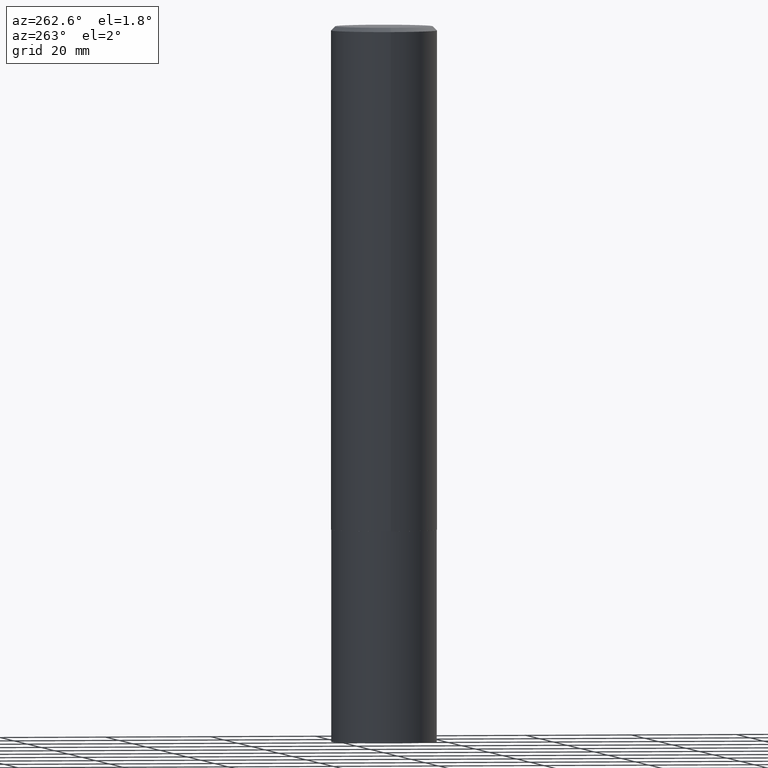
[diagram: clean part render]
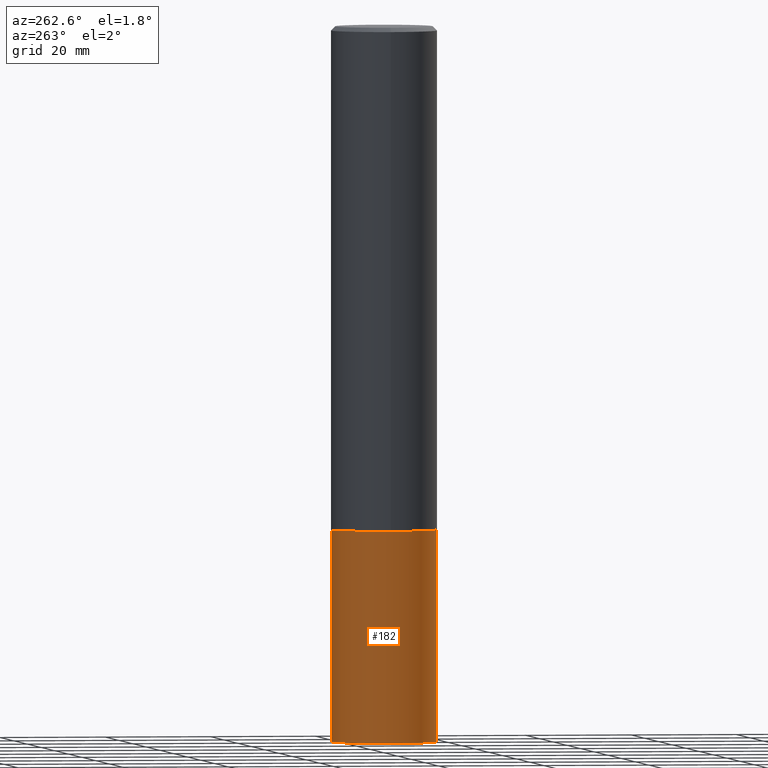
[diagram: same view with one face highlighted and labeled with its STEP entity id]
A machine part, auxiliary view. The second image highlights one B-rep face of the part: STEP entity #182.
In plain terms, the highlighted cylindrical surface (partial cylindrical patch) has radius 10 mm, axis along (-0, 0, 1).
Its self-contained STEP definition (entity closure, byte-faithful):
#8 = VERTEX_POINT ( 'NONE', #189 ) ;
#21 = VECTOR ( 'NONE', #243, 39.37007874015748143 ) ;
#32 = CARTESIAN_POINT ( 'NONE',  ( 9.146053335132411814E-29, -1.305814020727336734E-14, -3.740000000000000657 ) ) ;
#58 = LINE ( 'NONE', #362, #139 ) ;
#62 = VERTEX_POINT ( 'NONE', #294 ) ;
#70 = DIRECTION ( 'NONE',  ( -6.982962677686265133E-15, -1.000000000000000000, 4.163344669033674845E-15 ) ) ;
#71 = EDGE_CURVE ( 'NONE', #274, #8, #234, .T. ) ;
#96 = EDGE_CURVE ( 'NONE', #274, #140, #357, .T. ) ;
#101 = EDGE_CURVE ( 'NONE', #140, #62, #165, .T. ) ;
#106 = DIRECTION ( 'NONE',  ( -6.982962677686265133E-15, -1.000000000000000000, 4.163344669033674845E-15 ) ) ;
#110 = AXIS2_PLACEMENT_3D ( 'NONE', #212, #331, #106 ) ;
#139 = VECTOR ( 'NONE', #364, 39.37007874015748143 ) ;
#140 = VERTEX_POINT ( 'NONE', #231 ) ;
#159 = CARTESIAN_POINT ( 'NONE',  ( 2.797406750687605505E-15, 0.3936999999999870048, -3.740000000000001990 ) ) ;
#165 = CIRCLE ( 'NONE', #110, 0.3937000000000000499 ) ;
#178 = DIRECTION ( 'NONE',  ( -2.446583119360105066E-29, 3.489885578953823714E-15, 1.000000000000000000 ) ) ;
#182 = ADVANCED_FACE ( 'NONE', ( #191 ), #263, .T. ) ;
#189 = CARTESIAN_POINT ( 'NONE',  ( -2.749192406204953055E-15, -0.3937000000000185906, -5.315000000000000391 ) ) ;
#191 = FACE_OUTER_BOUND ( 'NONE', #277, .T. ) ;
#212 = CARTESIAN_POINT ( 'NONE',  ( 9.146053335132411814E-29, -1.305814020727336734E-14, -3.740000000000000657 ) ) ;
#226 = ORIENTED_EDGE ( 'NONE', *, *, #71, .T. ) ;
#231 = CARTESIAN_POINT ( 'NONE',  ( 2.797406750687644160E-15, 0.3936999999999870048, -3.740000000000001990 ) ) ;
#234 = CIRCLE ( 'NONE', #352, 0.3937000000000000499 ) ;
#235 = DIRECTION ( 'NONE',  ( -2.446583119360105066E-29, 3.489885578953823714E-15, 1.000000000000000000 ) ) ;
#243 = DIRECTION ( 'NONE',  ( -2.446583119360105066E-29, 3.489885578953823714E-15, 1.000000000000000000 ) ) ;
#259 = DIRECTION ( 'NONE',  ( -6.982962677686265133E-15, -1.000000000000000000, 2.775563112689116301E-15 ) ) ;
#263 = CYLINDRICAL_SURFACE ( 'NONE', #285, 0.3937000000000000499 ) ;
#273 = ORIENTED_EDGE ( 'NONE', *, *, #365, .T. ) ;
#274 = VERTEX_POINT ( 'NONE', #355 ) ;
#277 = EDGE_LOOP ( 'NONE', ( #333, #226, #273, #330 ) ) ;
#285 = AXIS2_PLACEMENT_3D ( 'NONE', #32, #178, #70 ) ;
#294 = CARTESIAN_POINT ( 'NONE',  ( -2.749192406204991709E-15, -0.3937000000000130950, -3.739999999999998881 ) ) ;
#330 = ORIENTED_EDGE ( 'NONE', *, *, #101, .F. ) ;
#331 = DIRECTION ( 'NONE',  ( -2.446583119360105066E-29, 3.489885578953823714E-15, 1.000000000000000000 ) ) ;
#333 = ORIENTED_EDGE ( 'NONE', *, *, #96, .F. ) ;
#346 = CARTESIAN_POINT ( 'NONE',  ( 1.299942174812458059E-28, -1.855470999412564443E-14, -5.315000000000001279 ) ) ;
#352 = AXIS2_PLACEMENT_3D ( 'NONE', #346, #235, #259 ) ;
#355 = CARTESIAN_POINT ( 'NONE',  ( 2.797406750687624833E-15, 0.3936999999999814537, -5.315000000000003055 ) ) ;
#357 = LINE ( 'NONE', #159, #21 ) ;
#362 = CARTESIAN_POINT ( 'NONE',  ( -2.749192406204991709E-15, -0.3937000000000130950, -3.739999999999998881 ) ) ;
#364 = DIRECTION ( 'NONE',  ( -2.446583119360105066E-29, 3.489885578953823714E-15, 1.000000000000000000 ) ) ;
#365 = EDGE_CURVE ( 'NONE', #8, #62, #58, .T. ) ;